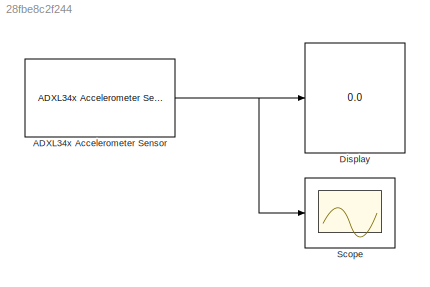
MODEL slx_28fbe8c2f244
KIND model
CONFIG AbsTol = auto
CONFIG EnableMultiTasking = on
CONFIG FixedStep = 0.00125
CONFIG MaxStep = auto
CONFIG MinStep = auto
CONFIG RelTol = 1e-3
CONFIG SampleTimeConstraint = Unconstrained
CONFIG SolverName = FixedStepAuto
CONFIG StartTime = 0.0
CONFIG StopTime = 5
BLOCK [Reference] ADXL34x Accelerometer Sensor  REF=mbedblockslib/ADXL34x Accelerometer Sensor
  LibrarySourceBlock = stmnucleosensorslib/ADXL34x Accelerometer Sensor
  SourceBlock = mbedblockslib/ADXL34x Accelerometer Sensor
  SourceType = mbed.ADXL34xBlock
BLOCK [Display] Display
  Decimation = 1
BLOCK [Scope] Scope
  Floating = off
  NumInputPorts = 1
  ScopeSpecificationString = Simulink.scopes.TimeScopeBlockCfg('CurrentConfiguration', extmgr.ConfigurationSet(extmgr.Configuration('Core','General UI',true),extmgr.Configuration('Core','Source UI',true),extmgr.Configuration('Sources','WiredSimulink',true,'DataLogging',true),extmgr.Configuration('Visuals','Time Domain',true,'SerializedDisplays',{struct('MinYLimReal','-5.49896','MaxYLimReal','15.0024','YLabelReal','','MinYLimM...<+2090ch>
NET ADXL34x Accelerometer Sensor:1 -> Display:1, Scope:1
note: NET lines group one-source signal fan-out (src -> all destinations, sorted); 1:1 wires keep LINE
